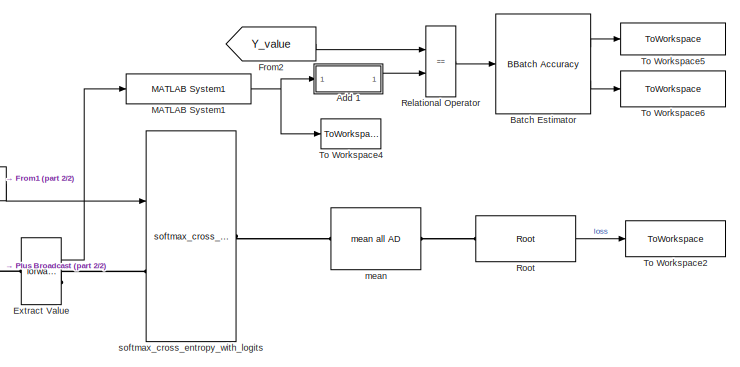
[diagram: root canvas - part 1/2, right side, full height]
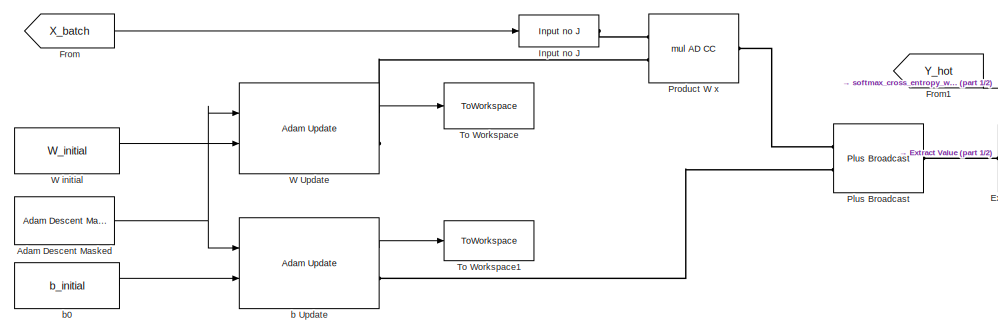
[diagram: root canvas - part 2/2, middle left region]
MODEL slx_03146a990d49
KIND model
CONFIG AbsTol = auto
CONFIG EnableMultiTasking = off
CONFIG FixedStep = 1
CONFIG MaxStep = auto
CONFIG MinStep = auto
CONFIG RelTol = 1e-3
CONFIG SampleTimeConstraint = Unconstrained
CONFIG Solver = FixedStepDiscrete
CONFIG SolverName = FixedStepDiscrete
CONFIG StartTime = 0.0
CONFIG StopTime = Inf
WORKSPACE source: MATLAB code (in-file)
WORKSPACE BatchSize = 100
WORKSPACE learningrate = 0.05
BLOCK [Reference] Adam Descent Masked  REF=ad_blocks/Adam Descent Masked  (lib defined in slx_3af8d3de87d3)
  Ports = [0, 1]
  SourceBlock = ad_blocks/Adam Descent Masked
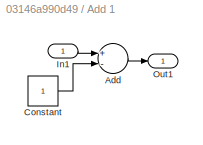
BLOCK [SubSystem] Add 1
  Ports = [1, 1]
  RequestExecContextInheritance = off
  Variant = off
BLOCK [Sum] Add 1/Add
  InputSameDT = off
  Inputs = +-
  OutDataTypeStr = Inherit: Inherit via internal rule
  Ports = [2, 1]
  SaturateOnIntegerOverflow = off
BLOCK [Constant] Add 1/Constant
  OutDataTypeStr = Inherit: Inherit via back propagation
BLOCK [Inport] Add 1/In1
  IconDisplay = Port number
BLOCK [Outport] Add 1/Out1
  IconDisplay = Port number
BLOCK [Reference] Batch Estimator  REF=ad_blocks/BBatch Accuracy  (lib defined in slx_3af8d3de87d3)
  Ports = [3, 2]
  SourceBlock = ad_blocks/BBatch Accuracy
  SourceType = SubSystem
BLOCK [Reference] Extract Value  REF=ad_blocks/forward viewer  (lib defined in slx_3af8d3de87d3)
  Ports = [0, 1, 0, 0, 0, 1, 1]
  SourceBlock = ad_blocks/forward viewer
BLOCK [From] From
  GotoTag = X_batch
BLOCK [From] From1
  GotoTag = Y_hot
BLOCK [From] From2
  GotoTag = Y_value
BLOCK [Reference] Input no J  REF=ad_blocks/Input no J  (lib defined in slx_3af8d3de87d3)
  Ports = [1, 0, 0, 0, 0, 0, 1]
  SourceBlock = ad_blocks/Input no J
BLOCK [Reference] MATLAB System1  REF=ad_blocks/MATLAB System1  (lib defined in slx_3af8d3de87d3)
  Ports = [1, 1]
  SourceBlock = ad_blocks/MATLAB System1
  SourceType = ArgmaxSystemD2
BLOCK [Reference] Plus Broadcast  REF=ad_blocks/Plus Broadcast  (lib defined in slx_3af8d3de87d3)
  Ports = [0, 0, 0, 0, 0, 2, 1]
  SourceBlock = ad_blocks/Plus Broadcast
  SourceType = SubSystem
BLOCK [Reference] Product W x  REF=ad_blocks/mul AD CC  (lib defined in slx_3af8d3de87d3)
  Ports = [0, 0, 0, 0, 0, 2, 1]
  SourceBlock = ad_blocks/mul AD CC
  SourceType = SubSystem
BLOCK [RelationalOperator] Relational Operator
  InputSameDT = off
  Operator = ==
  OutDataTypeStr = boolean
  Ports = [2, 1]
  RndMeth = Simplest
BLOCK [Reference] Root  REF=ad_blocks/Root  (lib defined in slx_3af8d3de87d3)
  Description = Top level AD block: gets the incoming value, pushes the scalar 1 gradient
  Ports = [0, 1, 0, 0, 0, 1]
  SourceBlock = ad_blocks/Root
BLOCK [ToWorkspace] To Workspace
  FixptAsFi = on
  MaxDataPoints = 1
  Ports = [1]
  SampleTime = -1
  Save2DSignal = 3-D array (concatenate along third dimension)
  SaveFormat = Timeseries
  VariableName = W_out
BLOCK [ToWorkspace] To Workspace1
  FixptAsFi = on
  MaxDataPoints = 1
  Ports = [1]
  SampleTime = -1
  Save2DSignal = 3-D array (concatenate along third dimension)
  SaveFormat = Timeseries
  VariableName = b_out
BLOCK [ToWorkspace] To Workspace2
  FixptAsFi = on
  MaxDataPoints = 1
  Ports = [1]
  SampleTime = -1
  Save2DSignal = 3-D array (concatenate along third dimension)
  SaveFormat = Timeseries
  VariableName = loss
BLOCK [ToWorkspace] To Workspace4
  FixptAsFi = on
  MaxDataPoints = 1
  Ports = [1]
  SampleTime = -1
  Save2DSignal = 3-D array (concatenate along third dimension)
  SaveFormat = Timeseries
  VariableName = Y_est
BLOCK [ToWorkspace] To Workspace5
  FixptAsFi = on
  MaxDataPoints = 1
  Ports = [1]
  SampleTime = -1
  Save2DSignal = 3-D array (concatenate along third dimension)
  SaveFormat = Timeseries
  VariableName = accuracy
BLOCK [ToWorkspace] To Workspace6
  FixptAsFi = on
  MaxDataPoints = 1
  Ports = [1]
  SampleTime = -1
  Save2DSignal = 3-D array (concatenate along third dimension)
  SaveFormat = Timeseries
  VariableName = progress
BLOCK [Reference] W Update  REF=ad_blocks/Adam Update  (lib defined in slx_3af8d3de87d3)
  Ports = [2, 1, 0, 0, 0, 0, 1]
  SourceBlock = ad_blocks/Adam Update
  SourceType = SubSystem
BLOCK [Constant] W initial
  OutDataTypeStr = single
  Value = W_initial
BLOCK [Reference] b Update  REF=ad_blocks/Adam Update  (lib defined in slx_3af8d3de87d3)
  Ports = [2, 1, 0, 0, 0, 0, 1]
  SourceBlock = ad_blocks/Adam Update
  SourceType = SubSystem
BLOCK [Constant] b0
  OutDataTypeStr = single
  Value = b_initial
BLOCK [Reference] mean  REF=ad_blocks/mean all AD  (lib defined in slx_3af8d3de87d3)
  Ports = [0, 0, 0, 0, 0, 1, 1]
  SourceBlock = ad_blocks/mean all AD
  SourceType = SubSystem
BLOCK [Reference] softmax_cross_entropy_with_logits  REF=ad_blocks/softmax_cross_entropy_with_logits  (lib defined in slx_3af8d3de87d3)
  Ports = [1, 0, 0, 0, 0, 1, 1]
  SourceBlock = ad_blocks/softmax_cross_entropy_with_logits
  SourceType = SubSystem
NET Adam Descent Masked:1 -> W Update:1, b Update:1
LINE Add 1/Add:1 -> Add 1/Out1:1
LINE Add 1/Constant:1 -> Add 1/Add:2
LINE Add 1/In1:1 -> Add 1/Add:1
LINE Add 1:1 -> Relational Operator:2
LINE Batch Estimator:1 -> To Workspace5:1
LINE Batch Estimator:2 -> To Workspace6:1
LINE Extract Value:1 -> MATLAB System1:1
LINE From1:1 -> softmax_cross_entropy_with_logits:1
LINE From2:1 -> Relational Operator:1
LINE From:1 -> Input no J:1
NET MATLAB System1:1 -> Add 1:1, To Workspace4:1
LINE Relational Operator:1 -> Batch Estimator:2
LINE Root:1 -> To Workspace2:1
LINE W Update:1 -> To Workspace:1
LINE W initial:1 -> W Update:2
LINE b Update:1 -> To Workspace1:1
LINE b0:1 -> b Update:2
PLINE Extract Value:LConn1 -- Plus Broadcast:RConn1
PLINE Extract Value:RConn1 -- softmax_cross_entropy_with_logits:LConn1
PLINE Input no J:RConn1 -- Product W x:LConn1
PLINE Plus Broadcast:LConn1 -- Product W x:RConn1
PLINE Plus Broadcast:LConn2 -- b Update:RConn1
PLINE Product W x:LConn2 -- W Update:RConn1
PLINE Root:LConn1 -- mean:RConn1
PLINE mean:LConn1 -- softmax_cross_entropy_with_logits:RConn1
note: NET lines group one-source signal fan-out (src -> all destinations, sorted); 1:1 wires keep LINE
